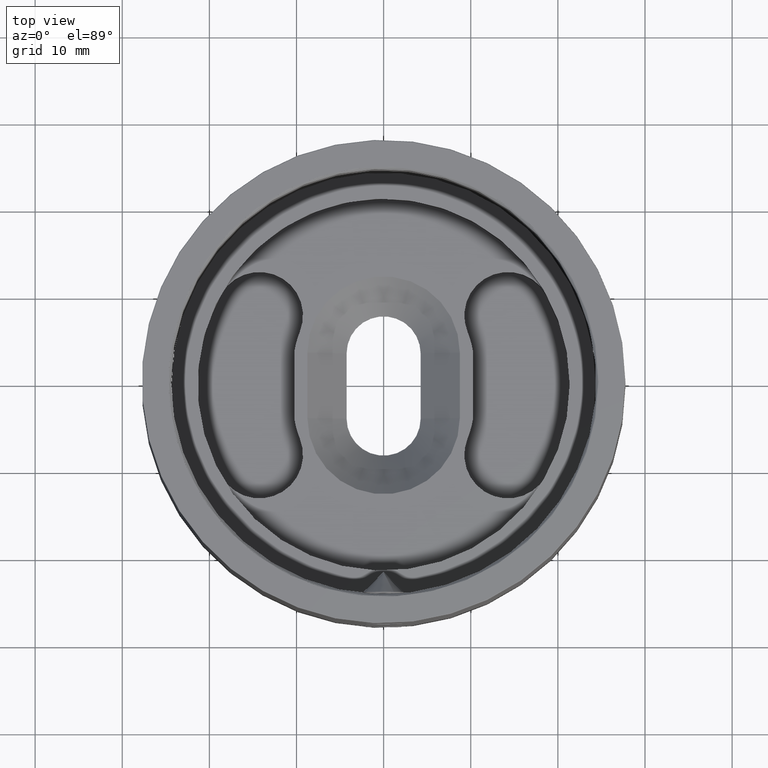
[diagram: clean part render]
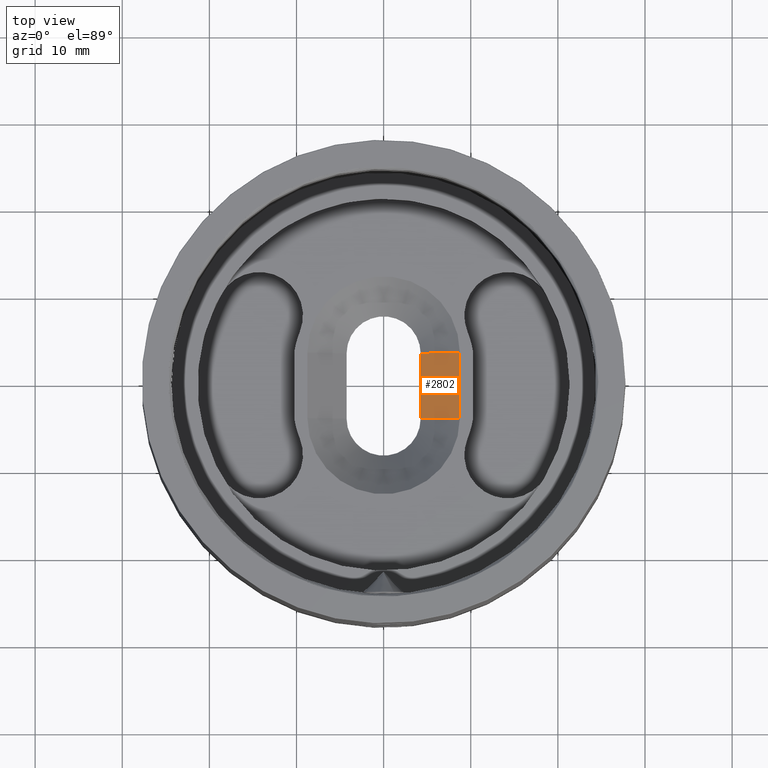
[diagram: same view with one face highlighted and labeled with its STEP entity id]
A machine part, top view. The second image highlights one B-rep face of the part: STEP entity #2802.
In plain terms, the highlighted planar face has unit normal (0.7071, 0, -0.7071).
Its self-contained STEP definition (entity closure, byte-faithful):
#130 = CARTESIAN_POINT ( 'NONE',  ( 4.249999999999985789, 3.750000000000014655, 1.600000000000001643 ) ) ;
#575 = FACE_OUTER_BOUND ( 'NONE', #16168, .T. ) ;
#1022 = EDGE_CURVE ( 'NONE', #8107, #14796, #2029, .T. ) ;
#1216 = LINE ( 'NONE', #14370, #10993 ) ;
#2029 = LINE ( 'NONE', #2045, #5039 ) ;
#2045 = CARTESIAN_POINT ( 'NONE',  ( 4.250000000000011546, -3.749999999999984901, 1.600000000000001643 ) ) ;
#2089 = VERTEX_POINT ( 'NONE', #2252 ) ;
#2252 = CARTESIAN_POINT ( 'NONE',  ( 8.749999999999994671, 3.750000000000030198, 6.099999999999999645 ) ) ;
#2455 = EDGE_CURVE ( 'NONE', #15803, #2089, #1216, .T. ) ;
#2797 = ORIENTED_EDGE ( 'NONE', *, *, #3787, .T. ) ;
#2802 = ADVANCED_FACE ( 'NONE', ( #575 ), #9935, .F. ) ;
#2900 = CARTESIAN_POINT ( 'NONE',  ( 4.249999999999985789, 3.750000000000000000, 1.600000000000001643 ) ) ;
#2939 = LINE ( 'NONE', #2900, #11568 ) ;
#3433 = ORIENTED_EDGE ( 'NONE', *, *, #15851, .F. ) ;
#3787 = EDGE_CURVE ( 'NONE', #2089, #14796, #2939, .T. ) ;
#4978 = CARTESIAN_POINT ( 'NONE',  ( 4.250000000000011546, -3.750000000000000000, 1.600000000000001643 ) ) ;
#5039 = VECTOR ( 'NONE', #11053, 1000.000000000000000 ) ;
#6638 = DIRECTION ( 'NONE',  ( -3.491481338843133355E-15, 1.000000000000000000, -0.000000000000000000 ) ) ;
#7678 = CARTESIAN_POINT ( 'NONE',  ( 4.250000000000011546, -3.749999999999984901, 1.600000000000001643 ) ) ;
#8075 = DIRECTION ( 'NONE',  ( -0.7071067811865479058, 0.000000000000000000, -0.7071067811865472397 ) ) ;
#8107 = VERTEX_POINT ( 'NONE', #7678 ) ;
#9203 = ORIENTED_EDGE ( 'NONE', *, *, #2455, .T. ) ;
#9289 = CARTESIAN_POINT ( 'NONE',  ( 4.250000000000011546, -3.750000000000000000, 1.600000000000001643 ) ) ;
#9935 = PLANE ( 'NONE',  #10428 ) ;
#10428 = AXIS2_PLACEMENT_3D ( 'NONE', #4978, #16355, #12728 ) ;
#10569 = ORIENTED_EDGE ( 'NONE', *, *, #1022, .F. ) ;
#10993 = VECTOR ( 'NONE', #6638, 1000.000000000000000 ) ;
#11053 = DIRECTION ( 'NONE',  ( -3.491481338843133355E-15, 1.000000000000000000, -0.000000000000000000 ) ) ;
#11568 = VECTOR ( 'NONE', #15572, 999.9999999999998863 ) ;
#11691 = VECTOR ( 'NONE', #8075, 999.9999999999998863 ) ;
#12728 = DIRECTION ( 'NONE',  ( -0.7071067811865479058, 0.000000000000000000, -0.7071067811865472397 ) ) ;
#14224 = CARTESIAN_POINT ( 'NONE',  ( 8.750000000000014211, -3.750000000000000000, 6.100000000000000533 ) ) ;
#14370 = CARTESIAN_POINT ( 'NONE',  ( 8.750000000000019540, -3.749999999999969358, 6.099999999999999645 ) ) ;
#14796 = VERTEX_POINT ( 'NONE', #130 ) ;
#15118 = LINE ( 'NONE', #9289, #11691 ) ;
#15572 = DIRECTION ( 'NONE',  ( -0.7071067811865479058, 0.000000000000000000, -0.7071067811865472397 ) ) ;
#15803 = VERTEX_POINT ( 'NONE', #14224 ) ;
#15851 = EDGE_CURVE ( 'NONE', #15803, #8107, #15118, .T. ) ;
#16168 = EDGE_LOOP ( 'NONE', ( #2797, #10569, #3433, #9203 ) ) ;
#16355 = DIRECTION ( 'NONE',  ( 0.7071067811865472397, 2.468850131082264949E-15, -0.7071067811865479058 ) ) ;